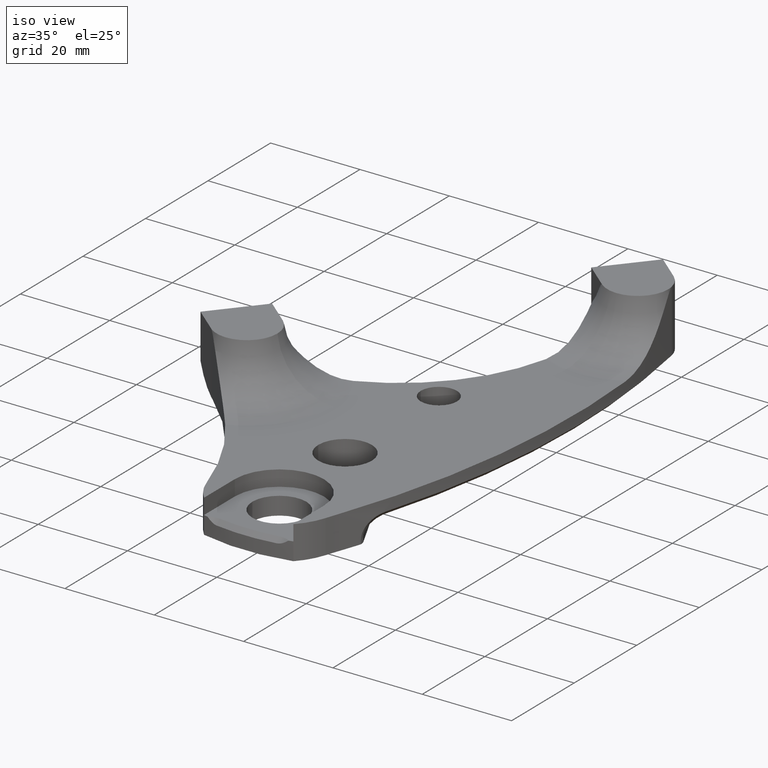
[diagram: clean part render]
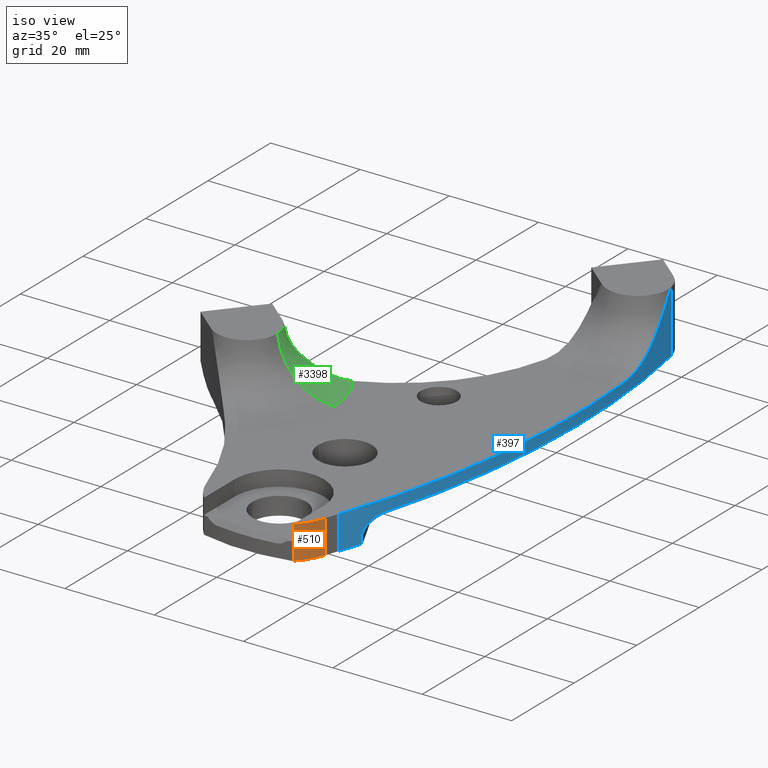
[diagram: same view with three faces highlighted in distinct colors, each labeled with its STEP entity id]
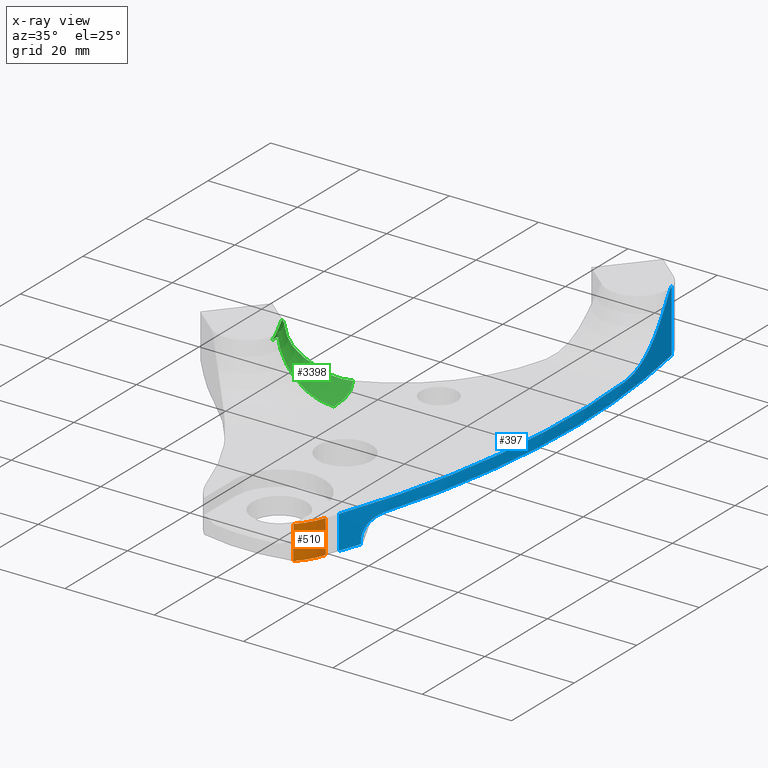
[diagram: x-ray of the same camera — body ghosted, the three highlighted faces saturated]
A machine part, iso view with three faces highlighted in distinct colors.
The next image is the same camera in x-ray (body ghosted, the three faces saturated) — at least one of them is partly hidden behind the body in this view.
Their STEP definitions:

[orange] entity #510 — the highlighted cylindrical surface (partial cylindrical patch) has radius 14 mm, axis along (-0, -0, -1).
#146 = EDGE_LOOP ( 'NONE', ( #935, #197, #3428, #1500, #1558 ) ) ;
#197 = ORIENTED_EDGE ( 'NONE', *, *, #2243, .T. ) ;
#208 = CARTESIAN_POINT ( 'NONE',  ( 9.999999999999968000, -9.797958971132725700, 0.0000000000000000000 ) ) ;
#234 = LINE ( 'NONE', #1823, #965 ) ;
#312 = VECTOR ( 'NONE', #1209, 1000.000000000000000 ) ;
#411 = DIRECTION ( 'NONE',  ( -0.0000000000000000000, -0.0000000000000000000, -1.000000000000000000 ) ) ;
#494 = LINE ( 'NONE', #1036, #2795 ) ;
#500 = EDGE_CURVE ( 'NONE', #3460, #3095, #1283, .T. ) ;
#510 = ADVANCED_FACE ( 'NONE', ( #1246 ), #1659, .T. ) ;
#812 = DIRECTION ( 'NONE',  ( 1.000000000000000000, 0.0000000000000000000, 0.0000000000000000000 ) ) ;
#935 = ORIENTED_EDGE ( 'NONE', *, *, #500, .T. ) ;
#965 = VECTOR ( 'NONE', #2464, 1000.000000000000000 ) ;
#1036 = CARTESIAN_POINT ( 'NONE',  ( 13.34035438566385200, -4.246756982086320200, 147.7549891739016900 ) ) ;
#1209 = DIRECTION ( 'NONE',  ( -0.0000000000000000000, -0.0000000000000000000, -1.000000000000000000 ) ) ;
#1234 = VERTEX_POINT ( 'NONE', #3405 ) ;
#1246 = FACE_OUTER_BOUND ( 'NONE', #146, .T. ) ;
#1283 = CIRCLE ( 'NONE', #2876, 13.99999999999998400 ) ;
#1500 = ORIENTED_EDGE ( 'NONE', *, *, #2245, .T. ) ;
#1558 = ORIENTED_EDGE ( 'NONE', *, *, #1738, .F. ) ;
#1638 = DIRECTION ( 'NONE',  ( -0.0000000000000000000, -0.0000000000000000000, -1.000000000000000000 ) ) ;
#1659 = CYLINDRICAL_SURFACE ( 'NONE', #3478, 13.99999999999998800 ) ;
#1693 = DIRECTION ( 'NONE',  ( 1.000000000000000000, 0.0000000000000000000, 0.0000000000000000000 ) ) ;
#1738 = EDGE_CURVE ( 'NONE', #3460, #3231, #494, .T. ) ;
#1771 = CIRCLE ( 'NONE', #2530, 13.99999999999998800 ) ;
#1823 = CARTESIAN_POINT ( 'NONE',  ( 9.999999999999968000, -9.797958971132725700, 147.7549891739016900 ) ) ;
#1867 = CARTESIAN_POINT ( 'NONE',  ( 13.34035438566385200, -4.246756982086320200, -4.000000000000000000 ) ) ;
#2243 = EDGE_CURVE ( 'NONE', #3095, #3111, #2633, .T. ) ;
#2245 = EDGE_CURVE ( 'NONE', #1234, #3231, #1771, .T. ) ;
#2458 = CARTESIAN_POINT ( 'NONE',  ( 13.34035438566383300, -4.246756982086326500, 3.500000000000003100 ) ) ;
#2464 = DIRECTION ( 'NONE',  ( -0.0000000000000000000, -0.0000000000000000000, -1.000000000000000000 ) ) ;
#2494 = DIRECTION ( 'NONE',  ( 0.0000000000000000000, 0.0000000000000000000, 1.000000000000000000 ) ) ;
#2530 = AXIS2_PLACEMENT_3D ( 'NONE', #2717, #2494, #1693 ) ;
#2557 = DIRECTION ( 'NONE',  ( -1.000000000000000000, 0.0000000000000000000, 0.0000000000000000000 ) ) ;
#2633 = LINE ( 'NONE', #3508, #312 ) ;
#2717 = CARTESIAN_POINT ( 'NONE',  ( 0.0000000000000000000, 1.232595164407830900E-029, -4.000000000000000000 ) ) ;
#2789 = EDGE_CURVE ( 'NONE', #3111, #1234, #234, .T. ) ;
#2795 = VECTOR ( 'NONE', #411, 1000.000000000000000 ) ;
#2860 = CARTESIAN_POINT ( 'NONE',  ( 9.999999999999968000, -9.797958971132725700, 3.500000000000003100 ) ) ;
#2876 = AXIS2_PLACEMENT_3D ( 'NONE', #3259, #1638, #812 ) ;
#3095 = VERTEX_POINT ( 'NONE', #2860 ) ;
#3111 = VERTEX_POINT ( 'NONE', #208 ) ;
#3153 = CARTESIAN_POINT ( 'NONE',  ( 0.0000000000000000000, 1.232595164407830900E-029, 147.7549891739016900 ) ) ;
#3231 = VERTEX_POINT ( 'NONE', #1867 ) ;
#3259 = CARTESIAN_POINT ( 'NONE',  ( 0.0000000000000000000, 1.232595164407830900E-029, 3.500000000000003100 ) ) ;
#3405 = CARTESIAN_POINT ( 'NONE',  ( 9.999999999999968000, -9.797958971132725700, -4.000000000000000000 ) ) ;
#3428 = ORIENTED_EDGE ( 'NONE', *, *, #2789, .T. ) ;
#3460 = VERTEX_POINT ( 'NONE', #2458 ) ;
#3478 = AXIS2_PLACEMENT_3D ( 'NONE', #3153, #3524, #2557 ) ;
#3508 = CARTESIAN_POINT ( 'NONE',  ( 9.999999999999968000, -9.797958971132725700, 147.7549891739016900 ) ) ;
#3524 = DIRECTION ( 'NONE',  ( -0.0000000000000000000, -0.0000000000000000000, -1.000000000000000000 ) ) ;

[blue] entity #397 — the highlighted cylindrical surface (partial cylindrical patch) has radius 180 mm, axis along (-0, -0, -1).
#15 = CARTESIAN_POINT ( 'NONE',  ( 16.62309628049303700, 5.405997396256972300, 0.1184061892860001400 ) ) ;
#51 = EDGE_CURVE ( 'NONE', #520, #924, #3282, .T. ) ;
#55 = CARTESIAN_POINT ( 'NONE',  ( 15.94495029258753300, 3.317165117228372500, -2.842662780884464400 ) ) ;
#65 = CARTESIAN_POINT ( 'NONE',  ( 21.96988769229928800, 93.26678776035203100, 14.20914540827567200 ) ) ;
#89 = DIRECTION ( 'NONE',  ( 1.000000000000000000, 0.0000000000000000000, 0.0000000000000000000 ) ) ;
#91 = EDGE_LOOP ( 'NONE', ( #3064, #1710, #3520, #3286, #1795, #880, #371, #3152, #2474, #1097 ) ) ;
#139 = CARTESIAN_POINT ( 'NONE',  ( 16.21692300615166700, 4.144577950183496300, -0.9376977398695740500 ) ) ;
#144 = CARTESIAN_POINT ( 'NONE',  ( 22.21405239075343700, 91.94449294177492500, 12.70798744239176000 ) ) ;
#166 = CARTESIAN_POINT ( 'NONE',  ( 23.32946410846637900, 85.00694051678624400, 6.227406221486174500 ) ) ;
#201 = CARTESIAN_POINT ( 'NONE',  ( 16.55875761077832200, 5.204185421945789300, -0.008227951959708051600 ) ) ;
#211 = CARTESIAN_POINT ( 'NONE',  ( 15.99764246013663000, 3.476414955037318200, -2.115850619774438400 ) ) ;
#226 = VECTOR ( 'NONE', #1610, 1000.000000000000000 ) ;
#294 = CARTESIAN_POINT ( 'NONE',  ( 16.07357940076073200, 3.706794813153591900, -1.585450881651286700 ) ) ;
#303 = CARTESIAN_POINT ( 'NONE',  ( 17.18006816008183400, 7.190024696943532400, 0.8098278608679271300 ) ) ;
#318 = CARTESIAN_POINT ( 'NONE',  ( 16.96529003086855500, 6.494129802220776100, 0.6141951446387059500 ) ) ;
#332 = CARTESIAN_POINT ( 'NONE',  ( 17.39582276650123700, 7.899388485563544100, 0.9342404607481542600 ) ) ;
#339 = CARTESIAN_POINT ( 'NONE',  ( 21.75549328990622700, 94.38469947691052700, 1.000000000000000900 ) ) ;
#345 = CARTESIAN_POINT ( 'NONE',  ( -154.9177525093064400, 59.93815801378288200, 3.500000000000003100 ) ) ;
#347 = CARTESIAN_POINT ( 'NONE',  ( 16.50469712317765700, 5.035040028027376400, -0.1211709818704587400 ) ) ;
#362 = CARTESIAN_POINT ( 'NONE',  ( 22.05948602838901000, 92.78853137538217800, 13.69670509645855500 ) ) ;
#368 = VERTEX_POINT ( 'NONE', #2129 ) ;
#371 = ORIENTED_EDGE ( 'NONE', *, *, #1269, .T. ) ;
#381 = CARTESIAN_POINT ( 'NONE',  ( 24.28460722926572800, 76.88781072498706200, 3.500000000000000000 ) ) ;
#387 = CARTESIAN_POINT ( 'NONE',  ( 14.31060865489092200, -1.395044883831797500, 3.500000000000003100 ) ) ;
#397 = ADVANCED_FACE ( 'NONE', ( #1596 ), #1019, .T. ) ;
#404 = CARTESIAN_POINT ( 'NONE',  ( 24.02348722620100600, 79.45131626886687600, 3.868016138134169300 ) ) ;
#459 = CARTESIAN_POINT ( 'NONE',  ( 22.00424692096282100, 93.08338568830349400, 14.01263446154888500 ) ) ;
#466 = CARTESIAN_POINT ( 'NONE',  ( 16.82682376610018700, 6.051220308055951200, 0.4405001307097035600 ) ) ;
#482 = CARTESIAN_POINT ( 'NONE',  ( 16.03797537323346800, 3.598656670161241200, -1.807164834458545600 ) ) ;
#508 = LINE ( 'NONE', #2957, #226 ) ;
#520 = VERTEX_POINT ( 'NONE', #2666 ) ;
#570 = EDGE_CURVE ( 'NONE', #2031, #3410, #508, .T. ) ;
#573 = CARTESIAN_POINT ( 'NONE',  ( 16.41175468054602100, 4.745729746288923000, -0.3416129385835725000 ) ) ;
#594 = CARTESIAN_POINT ( 'NONE',  ( 16.04390823888129700, 3.616662173159659300, -1.767765297194153500 ) ) ;
#633 = CARTESIAN_POINT ( 'NONE',  ( 23.12409642686212100, 86.42615747687266000, 7.211715753796388700 ) ) ;
#654 = CARTESIAN_POINT ( 'NONE',  ( 22.71491524341496100, 89.04150048105579200, 9.496666555530911300 ) ) ;
#661 = LINE ( 'NONE', #786, #953 ) ;
#710 = CARTESIAN_POINT ( 'NONE',  ( 16.89591044587846000, 6.271704359529632500, 0.5319566092495307000 ) ) ;
#724 = VERTEX_POINT ( 'NONE', #2156 ) ;
#737 = EDGE_CURVE ( 'NONE', #724, #1664, #2472, .T. ) ;
#786 = CARTESIAN_POINT ( 'NONE',  ( 21.75549328990622700, 94.38469947691052700, 147.7549891739016900 ) ) ;
#845 = DIRECTION ( 'NONE',  ( 1.000000000000000000, 0.0000000000000000000, 0.0000000000000000000 ) ) ;
#854 = CARTESIAN_POINT ( 'NONE',  ( 16.53699755160234400, 5.136059876952336900, -0.05302559064279369100 ) ) ;
#880 = ORIENTED_EDGE ( 'NONE', *, *, #1074, .F. ) ;
#917 = EDGE_CURVE ( 'NONE', #1917, #2766, #1211, .T. ) ;
#919 = CARTESIAN_POINT ( 'NONE',  ( 22.41494846400150800, 90.81603138667348700, 11.39181996139984700 ) ) ;
#924 = VERTEX_POINT ( 'NONE', #339 ) ;
#937 = DIRECTION ( 'NONE',  ( -0.0000000000000000000, -0.0000000000000000000, -1.000000000000000000 ) ) ;
#939 = CARTESIAN_POINT ( 'NONE',  ( 23.63375583914154300, 82.73114592656315800, 5.003787482151257600 ) ) ;
#953 = VECTOR ( 'NONE', #1946, 1000.000000000000000 ) ;
#966 = CARTESIAN_POINT ( 'NONE',  ( 22.26444774441075900, 91.66433628791308800, 12.37707493947819900 ) ) ;
#971 = CARTESIAN_POINT ( 'NONE',  ( -154.9177525093064400, 59.93815801378288200, 147.7549891739016900 ) ) ;
#985 = CARTESIAN_POINT ( 'NONE',  ( 16.11447942095525900, 3.831315074730689200, -1.370135521009323300 ) ) ;
#1014 = CARTESIAN_POINT ( 'NONE',  ( 16.14358789398798100, 3.920125175575056400, -1.234113656536935700 ) ) ;
#1018 = CARTESIAN_POINT ( 'NONE',  ( 22.81591626603118800, 88.41939038170052400, 8.894772136250527000 ) ) ;
#1019 = CYLINDRICAL_SURFACE ( 'NONE', #2327, 180.0000000000000000 ) ;
#1053 = CARTESIAN_POINT ( 'NONE',  ( 24.20073699201029200, 77.75100006481412200, 3.576655248415034500 ) ) ;
#1074 = EDGE_CURVE ( 'NONE', #2112, #924, #661, .T. ) ;
#1097 = ORIENTED_EDGE ( 'NONE', *, *, #570, .T. ) ;
#1115 = CARTESIAN_POINT ( 'NONE',  ( 16.76837797315369700, 5.865216066095170400, 0.3580091112073088800 ) ) ;
#1164 = CARTESIAN_POINT ( 'NONE',  ( 17.08463454966822700, 6.879883135033615800, 0.7299115460236823600 ) ) ;
#1211 = LINE ( 'NONE', #3299, #3135 ) ;
#1263 = CARTESIAN_POINT ( 'NONE',  ( 17.25112177909919700, 7.422197561283715200, 0.8602101400064329200 ) ) ;
#1269 = EDGE_CURVE ( 'NONE', #2112, #724, #3415, .T. ) ;
#1271 = CARTESIAN_POINT ( 'NONE',  ( 24.36328604258492100, 76.01015900168843600, 3.499999999999999600 ) ) ;
#1272 = CARTESIAN_POINT ( 'NONE',  ( 16.02699494512268100, 3.565348741595403900, -1.883708060362683700 ) ) ;
#1293 = CARTESIAN_POINT ( 'NONE',  ( 16.32471336213507800, 4.476289964305892400, -0.5814262894771143900 ) ) ;
#1310 = CARTESIAN_POINT ( 'NONE',  ( 23.02045689304876700, 87.11224950219026700, 7.752381881684404300 ) ) ;
#1371 = CARTESIAN_POINT ( 'NONE',  ( 16.31485895603248400, 4.445873011499729800, -0.6109042685858682200 ) ) ;
#1385 = CARTESIAN_POINT ( 'NONE',  ( 15.93964735952128500, 3.301165596593337500, -3.091620444773975200 ) ) ;
#1405 = CARTESIAN_POINT ( 'NONE',  ( 16.01124091851662400, 3.517585224580137600, -1.999025475558770000 ) ) ;
#1423 = CARTESIAN_POINT ( 'NONE',  ( 17.61013657532693700, 8.613290710097185600, 0.9999672123636540500 ) ) ;
#1447 = EDGE_CURVE ( 'NONE', #1664, #2031, #3184, .T. ) ;
#1495 = CARTESIAN_POINT ( 'NONE',  ( 23.73373041949905400, 81.93381846844434300, 4.662434786558540300 ) ) ;
#1517 = CARTESIAN_POINT ( 'NONE',  ( 16.35281623211091100, 4.563109624918247700, -0.4994906045225715500 ) ) ;
#1537 = CARTESIAN_POINT ( 'NONE',  ( 15.94818121610986100, 3.326914716727965300, -2.758847393240569700 ) ) ;
#1553 = CARTESIAN_POINT ( 'NONE',  ( 15.93963604792125800, 3.301131472795530500, -3.175000000000011400 ) ) ;
#1564 = CARTESIAN_POINT ( 'NONE',  ( 16.68852233472615900, 5.612052696324773200, 0.2350652592790304600 ) ) ;
#1596 = FACE_OUTER_BOUND ( 'NONE', #91, .T. ) ;
#1610 = DIRECTION ( 'NONE',  ( -0.0000000000000000000, -0.0000000000000000000, -1.000000000000000000 ) ) ;
#1629 = DIRECTION ( 'NONE',  ( -0.0000000000000000000, -0.0000000000000000000, 1.000000000000000000 ) ) ;
#1635 = CARTESIAN_POINT ( 'NONE',  ( 16.16654917382384200, 3.990267550346112000, -1.133729075711303000 ) ) ;
#1653 = CARTESIAN_POINT ( 'NONE',  ( 16.19119230579236300, 4.065716351091062100, -1.035792221178579900 ) ) ;
#1664 = VERTEX_POINT ( 'NONE', #1271 ) ;
#1672 = DIRECTION ( 'NONE',  ( -0.0000000000000000000, -0.0000000000000000000, -1.000000000000000000 ) ) ;
#1682 = CARTESIAN_POINT ( 'NONE',  ( 16.24220871643190000, 4.222176163137672400, -0.8459451270160419600 ) ) ;
#1685 = CARTESIAN_POINT ( 'NONE',  ( 22.00424692096282100, 93.08338568830349400, 14.01263446154888500 ) ) ;
#1710 = ORIENTED_EDGE ( 'NONE', *, *, #917, .T. ) ;
#1795 = ORIENTED_EDGE ( 'NONE', *, *, #51, .T. ) ;
#1814 = CARTESIAN_POINT ( 'NONE',  ( 15.95651223614958500, 3.352065878024769400, -2.596266752632349700 ) ) ;
#1820 = EDGE_CURVE ( 'NONE', #368, #520, #2288, .T. ) ;
#1824 = CARTESIAN_POINT ( 'NONE',  ( 16.43264344589936600, 4.810612736398161900, -0.2893499156974196900 ) ) ;
#1890 = CARTESIAN_POINT ( 'NONE',  ( -154.9177525093064400, 59.93815801378288200, 1.000000000000000900 ) ) ;
#1895 = CARTESIAN_POINT ( 'NONE',  ( 17.40834031197501000, 7.940856035055569300, 0.9394736131707881500 ) ) ;
#1917 = VERTEX_POINT ( 'NONE', #2186 ) ;
#1936 = DIRECTION ( 'NONE',  ( 0.0000000000000000000, 0.0000000000000000000, 1.000000000000000000 ) ) ;
#1946 = DIRECTION ( 'NONE',  ( -0.0000000000000000000, -0.0000000000000000000, -1.000000000000000000 ) ) ;
#1968 = AXIS2_PLACEMENT_3D ( 'NONE', #345, #937, #3197 ) ;
#2011 = CARTESIAN_POINT ( 'NONE',  ( 16.57029672709206000, 5.240350213416330200, 0.01492439457896382700 ) ) ;
#2027 = CARTESIAN_POINT ( 'NONE',  ( 17.12146496325840100, 6.999426994799438100, 0.7618349344243510200 ) ) ;
#2031 = VERTEX_POINT ( 'NONE', #387 ) ;
#2044 = AXIS2_PLACEMENT_3D ( 'NONE', #1890, #1629, #89 ) ;
#2046 = CARTESIAN_POINT ( 'NONE',  ( 17.37155827964361200, 7.819110188528566300, 0.9234540615301429800 ) ) ;
#2112 = VERTEX_POINT ( 'NONE', #2127 ) ;
#2121 = CARTESIAN_POINT ( 'NONE',  ( 24.36328604258492100, 76.01015900168843600, 3.499999999999999600 ) ) ;
#2127 = CARTESIAN_POINT ( 'NONE',  ( 21.75549328990624400, 94.38469947691052700, 14.89999999999999700 ) ) ;
#2129 = CARTESIAN_POINT ( 'NONE',  ( 17.70601769546575700, 8.937825070850099300, 1.000000000000000700 ) ) ;
#2130 = EDGE_CURVE ( 'NONE', #2766, #368, #2254, .T. ) ;
#2156 = CARTESIAN_POINT ( 'NONE',  ( 22.00424692096282100, 93.08338568830349400, 14.01263446154888500 ) ) ;
#2186 = CARTESIAN_POINT ( 'NONE',  ( 15.93963604792125800, 3.301131472795454200, -4.000000000000000000 ) ) ;
#2189 = DIRECTION ( 'NONE',  ( 0.0000000000000000000, 0.0000000000000000000, 1.000000000000000000 ) ) ;
#2193 = CARTESIAN_POINT ( 'NONE',  ( 23.43166547721353200, 84.27089872887471200, 5.780772916719174100 ) ) ;
#2218 = EDGE_CURVE ( 'NONE', #3410, #1917, #2296, .T. ) ;
#2254 = B_SPLINE_CURVE_WITH_KNOTS ( 'NONE', 3,
 ( #1553, #1385, #3175, #55, #1537, #1814, #2836, #3008, #3023, #211, #1405, #1272, #482, #594, #2967, #294, #2694, #985, #1014, #1635, #1653, #2568, #139, #1682, #3404, #2953, #1371, #1293, #1517, #3296, #573, #1824, #3195, #347, #854, #201, #2011, #15, #1564, #1115, #2591, #466, #2609, #710, #318, #2448, #1164, #2846, #2027, #303, #1263, #3439, #2046, #332, #1895, #2813, #1423, #3480 ),
 .UNSPECIFIED., .F., .F.,
 ( 4, 2, 2, 2, 2, 1, 2, 2, 2, 2, 1, 2, 2, 1, 2, 2, 2, 2, 1, 2, 2, 1, 1, 2, 2, 1, 1, 2, 2, 1, 1, 2, 2, 4 ),
 ( 0.0000000000000000000, 0.03125000000000016700, 0.06250000000000033300, 0.09375000000000050000, 0.1250000000000006700, 0.1562500000000006700, 0.1718750000000006900, 0.1875000000000007200, 0.2187500000000007200, 0.2500000000000007200, 0.2812500000000007200, 0.2968750000000005600, 0.3125000000000004400, 0.3437500000000002200, 0.3593750000000001100, 0.3750000000000000600, 0.4062500000000001700, 0.4375000000000002800, 0.4687500000000003900, 0.4843750000000007200, 0.5000000000000011100, 0.5625000000000015500, 0.5937500000000017800, 0.6093750000000018900, 0.6250000000000020000, 0.6875000000000023300, 0.7187500000000023300, 0.7343750000000024400, 0.7500000000000025500, 0.8125000000000025500, 0.8437500000000024400, 0.8593750000000024400, 0.8750000000000024400, 1.000000000000000000 ),
 .UNSPECIFIED. ) ;
#2288 = CIRCLE ( 'NONE', #3177, 180.0000000000000000 ) ;
#2296 = CIRCLE ( 'NONE', #3304, 180.0000000000000000 ) ;
#2319 = CARTESIAN_POINT ( 'NONE',  ( 23.78358963441085500, 81.52525316453804300, 4.505041748754819300 ) ) ;
#2327 = AXIS2_PLACEMENT_3D ( 'NONE', #971, #1672, #3120 ) ;
#2448 = CARTESIAN_POINT ( 'NONE',  ( 17.04849706051038900, 6.762782156531945300, 0.6971457747800881000 ) ) ;
#2472 = B_SPLINE_CURVE_WITH_KNOTS ( 'NONE', 3,
 ( #1685, #362, #3287, #144, #966, #919, #3310, #654, #1018, #1310, #633, #166, #2193, #2577, #939, #1495, #2319, #2612, #404, #1053, #381, #2121 ),
 .UNSPECIFIED., .F., .F.,
 ( 4, 2, 2, 2, 2, 2, 2, 2, 2, 2, 4 ),
 ( 0.001632432073192381500, 0.002944657262240487800, 0.004256882451288593300, 0.006881332829384806000, 0.009505783207481018800, 0.01213023358557723000, 0.01475468396367344400, 0.01606690915272154800, 0.01737913434176965500, 0.02000358471986587000, 0.02262803509796208100 ),
 .UNSPECIFIED. ) ;
#2474 = ORIENTED_EDGE ( 'NONE', *, *, #1447, .T. ) ;
#2482 = DIRECTION ( 'NONE',  ( -0.0000000000000000000, -0.0000000000000000000, 1.000000000000000000 ) ) ;
#2542 = CARTESIAN_POINT ( 'NONE',  ( -154.9177525093064400, 59.93815801378288200, 1.000000000000000900 ) ) ;
#2568 = CARTESIAN_POINT ( 'NONE',  ( 16.20799321987076500, 4.117195269304729300, -0.9710449239996620200 ) ) ;
#2577 = CARTESIAN_POINT ( 'NONE',  ( 23.58342781932157500, 83.12172790705400900, 5.188336108203324100 ) ) ;
#2591 = CARTESIAN_POINT ( 'NONE',  ( 16.80334681948274400, 5.976453253536673700, 0.4078796770915217300 ) ) ;
#2609 = CARTESIAN_POINT ( 'NONE',  ( 16.83920575705226600, 6.090700077431057100, 0.4572367212763395200 ) ) ;
#2612 = CARTESIAN_POINT ( 'NONE',  ( 23.93010658561341200, 80.28840963921520300, 4.082905621024024400 ) ) ;
#2666 = CARTESIAN_POINT ( 'NONE',  ( 25.08224749069354300, 59.93815801378288200, 1.000000000000000900 ) ) ;
#2668 = CARTESIAN_POINT ( 'NONE',  ( 21.93450940714857100, 93.45416793134032200, 14.40165210679263600 ) ) ;
#2672 = CARTESIAN_POINT ( 'NONE',  ( 21.87458291246366200, 93.76834427629670200, 14.65738004240277800 ) ) ;
#2694 = CARTESIAN_POINT ( 'NONE',  ( 16.10003707129279200, 3.787312581628198100, -1.442451016277555000 ) ) ;
#2766 = VERTEX_POINT ( 'NONE', #3264 ) ;
#2813 = CARTESIAN_POINT ( 'NONE',  ( 17.51482631552802600, 8.294055860361805100, 0.9813424476609604600 ) ) ;
#2836 = CARTESIAN_POINT ( 'NONE',  ( 15.96169613040054500, 3.367720310032649200, -2.515358848988763700 ) ) ;
#2846 = CARTESIAN_POINT ( 'NONE',  ( 17.10883140250537700, 6.958387207119137100, 0.7511366160045267500 ) ) ;
#2953 = CARTESIAN_POINT ( 'NONE',  ( 16.29610660629823800, 4.388042165512950500, -0.6685698495745600000 ) ) ;
#2957 = CARTESIAN_POINT ( 'NONE',  ( 14.31060865489092200, -1.395044883831797500, 147.7549891739016900 ) ) ;
#2967 = CARTESIAN_POINT ( 'NONE',  ( 16.06119884679284500, 3.669165209719551500, -1.657841960294578200 ) ) ;
#3008 = CARTESIAN_POINT ( 'NONE',  ( 15.97409561029967200, 3.405188556397940000, -2.354307875022637800 ) ) ;
#3019 = CARTESIAN_POINT ( 'NONE',  ( 14.31060865489092200, -1.395044883831797500, -4.000000000000000000 ) ) ;
#3023 = CARTESIAN_POINT ( 'NONE',  ( 15.98143571947352700, 3.427379134558768300, -2.272957682301670200 ) ) ;
#3064 = ORIENTED_EDGE ( 'NONE', *, *, #2218, .T. ) ;
#3092 = CARTESIAN_POINT ( 'NONE',  ( -154.9177525093064400, 59.93815801378288200, -4.000000000000000000 ) ) ;
#3096 = CARTESIAN_POINT ( 'NONE',  ( 21.80733587344398600, 94.11794724190510000, 14.85863699523704900 ) ) ;
#3120 = DIRECTION ( 'NONE',  ( -1.000000000000000000, 0.0000000000000000000, 0.0000000000000000000 ) ) ;
#3130 = CARTESIAN_POINT ( 'NONE',  ( 21.75549328990624400, 94.38469947691052700, 14.89999999999999700 ) ) ;
#3135 = VECTOR ( 'NONE', #1936, 1000.000000000000000 ) ;
#3152 = ORIENTED_EDGE ( 'NONE', *, *, #737, .T. ) ;
#3175 = CARTESIAN_POINT ( 'NONE',  ( 15.94071268605156200, 3.304379078886968000, -3.008477089905648300 ) ) ;
#3177 = AXIS2_PLACEMENT_3D ( 'NONE', #2542, #2482, #845 ) ;
#3184 = CIRCLE ( 'NONE', #1968, 180.0000000000000000 ) ;
#3195 = CARTESIAN_POINT ( 'NONE',  ( 16.47342189232406500, 4.937523657933948800, -0.1921631727071309000 ) ) ;
#3197 = DIRECTION ( 'NONE',  ( 1.000000000000000000, 0.0000000000000000000, 0.0000000000000000000 ) ) ;
#3264 = CARTESIAN_POINT ( 'NONE',  ( 15.93963604792125800, 3.301131472795530500, -3.175000000000011400 ) ) ;
#3282 = CIRCLE ( 'NONE', #2044, 180.0000000000000000 ) ;
#3286 = ORIENTED_EDGE ( 'NONE', *, *, #1820, .T. ) ;
#3287 = CARTESIAN_POINT ( 'NONE',  ( 22.11145769736623400, 92.50716960881565900, 13.36722836683626000 ) ) ;
#3296 = CARTESIAN_POINT ( 'NONE',  ( 16.37210026513090400, 4.622784847801694000, -0.4460655553468934600 ) ) ;
#3299 = CARTESIAN_POINT ( 'NONE',  ( 15.93963604792125800, 3.301131472795447500, 147.7549891739016900 ) ) ;
#3304 = AXIS2_PLACEMENT_3D ( 'NONE', #3092, #2189, #3382 ) ;
#3310 = CARTESIAN_POINT ( 'NONE',  ( 22.51438462815228200, 90.24007060276176200, 10.74494092768596000 ) ) ;
#3372 = CARTESIAN_POINT ( 'NONE',  ( 21.78199063227949100, 94.24879696585158200, 14.90000000000000400 ) ) ;
#3382 = DIRECTION ( 'NONE',  ( 1.000000000000000000, 0.0000000000000000000, 0.0000000000000000000 ) ) ;
#3388 = CARTESIAN_POINT ( 'NONE',  ( 21.85346212521692200, 93.87858423687394800, 14.73662467965190700 ) ) ;
#3404 = CARTESIAN_POINT ( 'NONE',  ( 16.26844853198941400, 4.302821644524300400, -0.7559439279526589700 ) ) ;
#3410 = VERTEX_POINT ( 'NONE', #3019 ) ;
#3415 = B_SPLINE_CURVE_WITH_KNOTS ( 'NONE', 3,
 ( #3130, #3372, #3096, #3388, #2672, #2668, #65, #459 ),
 .UNSPECIFIED., .F., .F.,
 ( 4, 2, 2, 4 ),
 ( 0.0000000000000000000, 0.0004081080182981021500, 0.0008162160365962042900, 0.001632432073192381500 ),
 .UNSPECIFIED. ) ;
#3439 = CARTESIAN_POINT ( 'NONE',  ( 17.33524668325365400, 7.699126341371219000, 0.9063733086288652300 ) ) ;
#3480 = CARTESIAN_POINT ( 'NONE',  ( 17.70601769546575700, 8.937825070850099300, 1.000000000000000700 ) ) ;
#3520 = ORIENTED_EDGE ( 'NONE', *, *, #2130, .T. ) ;

[green] entity #3398 — the highlighted toroidal blend (fillet) surface has major radius 19.4333 mm and minor (blend) radius 12.7 mm.
#7 = FACE_OUTER_BOUND ( 'NONE', #2724, .T. ) ;
#62 = EDGE_CURVE ( 'NONE', #2857, #843, #1252, .T. ) ;
#66 = DIRECTION ( 'NONE',  ( 1.000000000000000000, 0.0000000000000000000, 0.0000000000000000000 ) ) ;
#138 = ORIENTED_EDGE ( 'NONE', *, *, #1512, .F. ) ;
#237 = CARTESIAN_POINT ( 'NONE',  ( -17.71753174347041300, 46.97356544994930500, 3.534624000150829600 ) ) ;
#250 = CARTESIAN_POINT ( 'NONE',  ( -23.68894543803583000, 45.19390400226328100, 5.430954675418282900 ) ) ;
#283 = VERTEX_POINT ( 'NONE', #1107 ) ;
#308 = CARTESIAN_POINT ( 'NONE',  ( -28.17013444613433400, 44.51529209398700700, 8.426435566645517700 ) ) ;
#352 = CARTESIAN_POINT ( 'NONE',  ( -28.41437236245734600, 41.59602850439048200, 14.87121133569399800 ) ) ;
#484 = CARTESIAN_POINT ( 'NONE',  ( -25.81366996791600200, 36.24288800887497100, 14.90000000000000000 ) ) ;
#485 = CARTESIAN_POINT ( 'NONE',  ( -13.18038061003299400, 36.24288800887497100, 3.499999999999999600 ) ) ;
#486 = DIRECTION ( 'NONE',  ( 0.0000000000000000000, -1.000000000000000000, 0.0000000000000000000 ) ) ;
#539 = CARTESIAN_POINT ( 'NONE',  ( -17.20277159236890100, 47.17518633086081800, 3.499999999999999100 ) ) ;
#581 = EDGE_CURVE ( 'NONE', #283, #1051, #1775, .T. ) ;
#600 = CARTESIAN_POINT ( 'NONE',  ( -27.72893389400050900, 44.55781801914999100, 8.108305735723526200 ) ) ;
#638 = ORIENTED_EDGE ( 'NONE', *, *, #3031, .F. ) ;
#716 = CARTESIAN_POINT ( 'NONE',  ( -28.64471403530657400, 41.78930811712302800, 14.72018373379471800 ) ) ;
#728 = CARTESIAN_POINT ( 'NONE',  ( -28.57223393900487500, 41.72849009504856400, 14.78024252342105000 ) ) ;
#746 = CARTESIAN_POINT ( 'NONE',  ( -32.70559847102634900, 45.41709371011325700, 8.713499888906953900 ) ) ;
#760 = CARTESIAN_POINT ( 'NONE',  ( -30.22614037700552500, 43.11628237717662400, 12.53053128558311300 ) ) ;
#785 = CARTESIAN_POINT ( 'NONE',  ( -32.48423755574264500, 45.30268839363715500, 8.874522768772681800 ) ) ;
#802 = CARTESIAN_POINT ( 'NONE',  ( -33.33851261669860800, 45.77994327661725300, 8.206190469055714600 ) ) ;
#819 = CARTESIAN_POINT ( 'NONE',  ( -20.75128249510019500, 45.94720557694272900, 4.172433458990711100 ) ) ;
#843 = VERTEX_POINT ( 'NONE', #485 ) ;
#884 = DIRECTION ( 'NONE',  ( 0.0000000000000000000, 0.0000000000000000000, 1.000000000000000000 ) ) ;
#886 = CARTESIAN_POINT ( 'NONE',  ( -16.69331456390601800, 47.38716990934836600, 3.500000000000003100 ) ) ;
#975 = CARTESIAN_POINT ( 'NONE',  ( -31.74706852708969500, 44.98239848291051900, 9.289009778385436200 ) ) ;
#1028 = CARTESIAN_POINT ( 'NONE',  ( -30.31929952197150900, 44.59286553459345000, 9.484170450871388900 ) ) ;
#1050 = CARTESIAN_POINT ( 'NONE',  ( -32.00664445161276500, 45.08581061096899800, 9.161934360400106700 ) ) ;
#1051 = VERTEX_POINT ( 'NONE', #2625 ) ;
#1075 = CARTESIAN_POINT ( 'NONE',  ( -32.61366996791600300, 36.24288800887497100, 3.499999999999999600 ) ) ;
#1107 = CARTESIAN_POINT ( 'NONE',  ( -28.24271422204756400, 41.45199022208404900, 14.90000000000000000 ) ) ;
#1185 = DIRECTION ( 'NONE',  ( -0.0000000000000000000, -0.0000000000000000000, -1.000000000000000000 ) ) ;
#1221 = AXIS2_PLACEMENT_3D ( 'NONE', #2182, #884, #66 ) ;
#1245 = CARTESIAN_POINT ( 'NONE',  ( -30.66534263001076300, 43.48481682568554200, 11.84460642026738600 ) ) ;
#1252 = CIRCLE ( 'NONE', #2214, 12.69999999999999900 ) ;
#1274 = CARTESIAN_POINT ( 'NONE',  ( -32.04343011550994900, 44.64116952649792600, 9.861445903763925700 ) ) ;
#1314 = CARTESIAN_POINT ( 'NONE',  ( -18.73843350198632200, 46.59754167849088400, 3.667261841487567100 ) ) ;
#1345 = CARTESIAN_POINT ( 'NONE',  ( -28.24271422204756400, 41.45199022208404900, 14.90000000000000000 ) ) ;
#1456 = AXIS2_PLACEMENT_3D ( 'NONE', #2697, #1185, #3491 ) ;
#1492 = EDGE_CURVE ( 'NONE', #2734, #843, #2166, .T. ) ;
#1512 = EDGE_CURVE ( 'NONE', #1051, #3145, #2257, .T. ) ;
#1544 = CARTESIAN_POINT ( 'NONE',  ( -30.90869616179795200, 44.72354400613163300, 9.492480185557226900 ) ) ;
#1552 = ORIENTED_EDGE ( 'NONE', *, *, #62, .T. ) ;
#1581 = CARTESIAN_POINT ( 'NONE',  ( -19.24508781675764300, 46.42279008572767700, 3.764940977824338600 ) ) ;
#1775 = B_SPLINE_CURVE_WITH_KNOTS ( 'NONE', 3,
 ( #1345, #3498, #352, #728, #716, #2708, #2167, #2240, #2885, #760, #1245, #2586, #1274, #3218, #3309, #3233 ),
 .UNSPECIFIED., .F., .F.,
 ( 4, 2, 2, 2, 2, 2, 2, 4 ),
 ( 0.0000000000000000000, 0.0003358465399032215200, 0.0006716930798064430400, 0.001343386159612899700, 0.002686772319225817300, 0.005373544638451643200, 0.008060316957677473400, 0.01074708927690330500 ),
 .UNSPECIFIED. ) ;
#1845 = CARTESIAN_POINT ( 'NONE',  ( -20.25151649884830000, 46.09761889523357300, 4.017506559994361100 ) ) ;
#1857 = CARTESIAN_POINT ( 'NONE',  ( -30.76017114027853000, 44.68729730549802800, 9.500446660429890500 ) ) ;
#1866 = CARTESIAN_POINT ( 'NONE',  ( -29.18822587120987300, 44.47804283639556600, 9.078829353858406400 ) ) ;
#1954 = CIRCLE ( 'NONE', #1456, 6.800000000000000700 ) ;
#2052 = DIRECTION ( 'NONE',  ( 0.0000000000000000000, 0.0000000000000000000, -1.000000000000000000 ) ) ;
#2166 = CIRCLE ( 'NONE', #2306, 19.43328935788300900 ) ;
#2167 = CARTESIAN_POINT ( 'NONE',  ( -28.97704856658739200, 42.06816989974822000, 14.36514136903446600 ) ) ;
#2182 = CARTESIAN_POINT ( 'NONE',  ( -32.61366996791600300, 36.24288800887497100, 16.19999999999999900 ) ) ;
#2188 = ORIENTED_EDGE ( 'NONE', *, *, #581, .F. ) ;
#2214 = AXIS2_PLACEMENT_3D ( 'NONE', #2313, #486, #2052 ) ;
#2240 = CARTESIAN_POINT ( 'NONE',  ( -29.33612537374977000, 42.36947111620246900, 13.88808664075099500 ) ) ;
#2257 = B_SPLINE_CURVE_WITH_KNOTS ( 'NONE', 3,
 ( #2510, #3323, #802, #746, #785, #1050, #975, #2685, #3118, #1544, #1857, #1028, #3515, #3402, #1866, #3263, #3493, #3022 ),
 .UNSPECIFIED., .F., .F.,
 ( 4, 2, 2, 2, 2, 2, 2, 2, 4 ),
 ( 0.0000000000000000000, 0.001776933609631237300, 0.002665400414446851500, 0.003553867219262465900, 0.003998100621670271800, 0.004442334024078078100, 0.005330800828893696000, 0.006219267633709313900, 0.007107734438524931700 ),
 .UNSPECIFIED. ) ;
#2291 = CARTESIAN_POINT ( 'NONE',  ( -27.29052898930319100, 44.60744378132006500, 7.787656929338892200 ) ) ;
#2306 = AXIS2_PLACEMENT_3D ( 'NONE', #1075, #2547, #2610 ) ;
#2313 = CARTESIAN_POINT ( 'NONE',  ( -13.18038061003299400, 36.24288800887497100, 16.19999999999999900 ) ) ;
#2366 = B_SPLINE_CURVE_WITH_KNOTS ( 'NONE', 3,
 ( #308, #600, #2291, #2571, #3546, #3094, #250, #2387, #2656, #819, #1845, #1581, #1314, #237, #539, #3204 ),
 .UNSPECIFIED., .F., .F.,
 ( 4, 2, 2, 2, 2, 2, 2, 4 ),
 ( 0.0000000000000000000, 0.001628100644844152600, 0.003256201289688305300, 0.006512402579376616600, 0.008140503224220779400, 0.009768603869064942200, 0.01139670451390910500, 0.01302480515875326800 ),
 .UNSPECIFIED. ) ;
#2387 = CARTESIAN_POINT ( 'NONE',  ( -22.23981606138882200, 45.54070281471732800, 4.744509449941023000 ) ) ;
#2510 = CARTESIAN_POINT ( 'NONE',  ( -34.07997287861420700, 46.35003180789545500, 7.466421733327427600 ) ) ;
#2547 = DIRECTION ( 'NONE',  ( -0.0000000000000000000, -0.0000000000000000000, -1.000000000000000000 ) ) ;
#2571 = CARTESIAN_POINT ( 'NONE',  ( -26.40796890205581000, 44.72235692200791100, 7.160250777131040900 ) ) ;
#2586 = CARTESIAN_POINT ( 'NONE',  ( -31.57488411225806100, 44.24801274797966500, 10.51116986609151200 ) ) ;
#2610 = DIRECTION ( 'NONE',  ( 1.000000000000000000, 1.785311219351680200E-015, 0.0000000000000000000 ) ) ;
#2625 = CARTESIAN_POINT ( 'NONE',  ( -34.07997287861420700, 46.35003180789545500, 7.466421733327427600 ) ) ;
#2640 = CARTESIAN_POINT ( 'NONE',  ( -28.17013444613433400, 44.51529209398700700, 8.426435566645517700 ) ) ;
#2656 = CARTESIAN_POINT ( 'NONE',  ( -21.74443473517602500, 45.66894942070482000, 4.535344781282534900 ) ) ;
#2674 = ORIENTED_EDGE ( 'NONE', *, *, #1492, .F. ) ;
#2685 = CARTESIAN_POINT ( 'NONE',  ( -31.33831938260461000, 44.84572519313105900, 9.417886482402272100 ) ) ;
#2697 = CARTESIAN_POINT ( 'NONE',  ( -32.61366996791600300, 36.24288800887497100, 14.90000000000000000 ) ) ;
#2708 = CARTESIAN_POINT ( 'NONE',  ( -28.85332961561218200, 41.96435737361529300, 14.52006924232795600 ) ) ;
#2724 = EDGE_LOOP ( 'NONE', ( #3121, #1552, #2674, #638, #138, #2188 ) ) ;
#2734 = VERTEX_POINT ( 'NONE', #886 ) ;
#2857 = VERTEX_POINT ( 'NONE', #484 ) ;
#2858 = TOROIDAL_SURFACE ( 'NONE', #1221, 19.43328935788300900, 12.69999999999999900 ) ;
#2885 = CARTESIAN_POINT ( 'NONE',  ( -29.55884481359431200, 42.55635491603204900, 13.54894191567822200 ) ) ;
#3022 = CARTESIAN_POINT ( 'NONE',  ( -28.17013444613433400, 44.51529209398700700, 8.426435566645517700 ) ) ;
#3031 = EDGE_CURVE ( 'NONE', #3145, #2734, #2366, .T. ) ;
#3037 = EDGE_CURVE ( 'NONE', #283, #2857, #1954, .T. ) ;
#3094 = CARTESIAN_POINT ( 'NONE',  ( -24.61362821372908600, 45.01024633987271500, 5.969834872141204200 ) ) ;
#3118 = CARTESIAN_POINT ( 'NONE',  ( -31.19821701040455900, 44.80294157849151300, 9.450936767572482500 ) ) ;
#3121 = ORIENTED_EDGE ( 'NONE', *, *, #3037, .T. ) ;
#3145 = VERTEX_POINT ( 'NONE', #2640 ) ;
#3204 = CARTESIAN_POINT ( 'NONE',  ( -16.69331456390601800, 47.38716990934836600, 3.500000000000003100 ) ) ;
#3218 = CARTESIAN_POINT ( 'NONE',  ( -33.02545312230528700, 45.46518466930746900, 8.617428616605440800 ) ) ;
#3233 = CARTESIAN_POINT ( 'NONE',  ( -34.07997287861420700, 46.35003180789545500, 7.466421733327427600 ) ) ;
#3263 = CARTESIAN_POINT ( 'NONE',  ( -28.66558067608176300, 44.47874636499206200, 8.772306489710517900 ) ) ;
#3309 = CARTESIAN_POINT ( 'NONE',  ( -33.54003201591637400, 45.89696762914815100, 8.021623008391380000 ) ) ;
#3323 = CARTESIAN_POINT ( 'NONE',  ( -33.71984837232511700, 46.04785146749038200, 7.836724481066222700 ) ) ;
#3398 = ADVANCED_FACE ( 'NONE', ( #7 ), #2858, .F. ) ;
#3402 = CARTESIAN_POINT ( 'NONE',  ( -29.45796630313106900, 44.49030585523708200, 9.214646897177615900 ) ) ;
#3491 = DIRECTION ( 'NONE',  ( 1.000000000000000000, 0.0000000000000000000, 0.0000000000000000000 ) ) ;
#3493 = CARTESIAN_POINT ( 'NONE',  ( -28.41517823015075100, 44.49167309901898900, 8.603125593891867600 ) ) ;
#3498 = CARTESIAN_POINT ( 'NONE',  ( -28.33000376397805600, 41.52523484452356000, 14.90000000000000400 ) ) ;
#3515 = CARTESIAN_POINT ( 'NONE',  ( -30.02133715625439300, 44.54706829453690600, 9.418061811551888600 ) ) ;
#3546 = CARTESIAN_POINT ( 'NONE',  ( -25.96394272418112000, 44.78765142778257800, 6.853284955784234400 ) ) ;